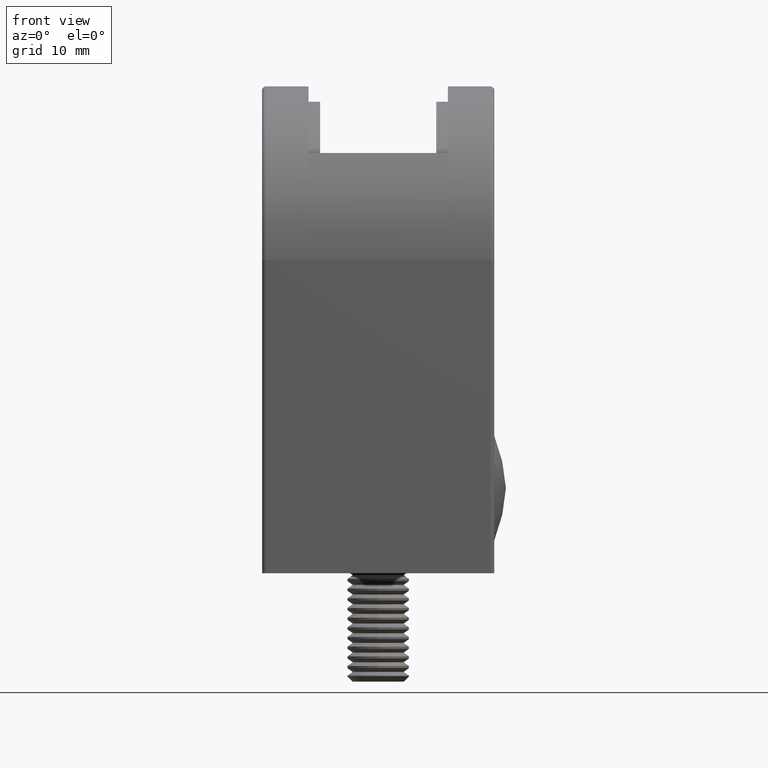
[diagram: clean part render]
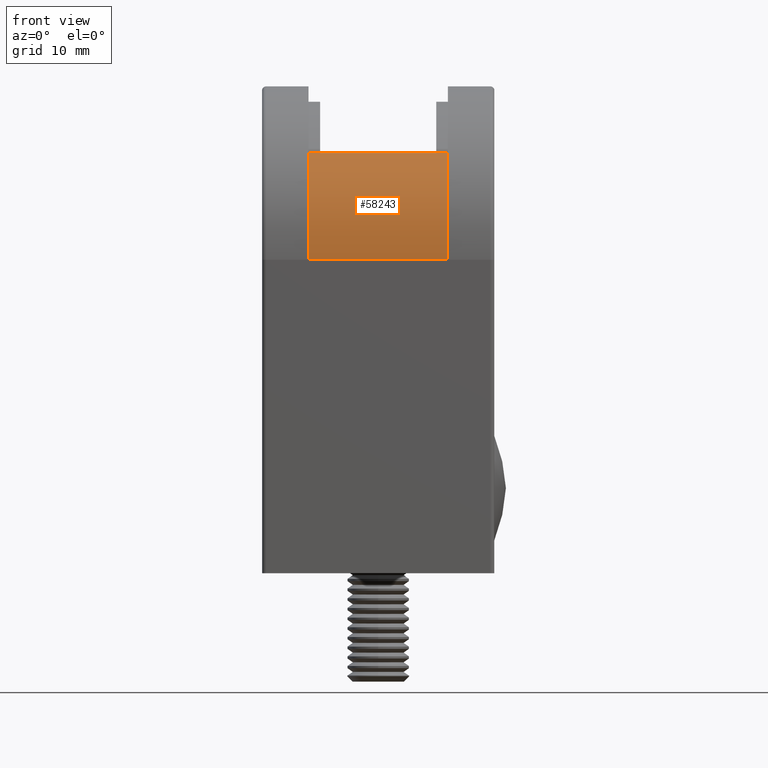
[diagram: same view with one face highlighted and labeled with its STEP entity id]
A machine part, front view. The second image highlights one B-rep face of the part: STEP entity #58243.
In plain terms, the highlighted cylindrical surface (partial cylindrical patch) has radius 22.5 mm, axis along (-1, -0, -0).
Its self-contained STEP definition (entity closure, byte-faithful):
#904 = EDGE_CURVE ( 'NONE', #84746, #38594, #84269, .T. ) ;
#1394 = CARTESIAN_POINT ( 'NONE',  ( 9.000000000000000000, 22.49999999999999289, 22.50000000000001066 ) ) ;
#5052 = LINE ( 'NONE', #44237, #28380 ) ;
#5473 = EDGE_CURVE ( 'NONE', #11238, #87777, #31754, .T. ) ;
#8587 = DIRECTION ( 'NONE',  ( 0.000000000000000000, 0.000000000000000000, -1.000000000000000000 ) ) ;
#9796 = CARTESIAN_POINT ( 'NONE',  ( 9.000000000000000000, 4.728956136456109682, 36.29999999999999716 ) ) ;
#11238 = VERTEX_POINT ( 'NONE', #32287 ) ;
#19348 = AXIS2_PLACEMENT_3D ( 'NONE', #26334, #75269, #38927 ) ;
#19973 = DIRECTION ( 'NONE',  ( 1.000000000000000000, -0.000000000000000000, 0.000000000000000000 ) ) ;
#23760 = CARTESIAN_POINT ( 'NONE',  ( -9.000000000000000000, -1.387778780781445676E-14, 22.50000000000001066 ) ) ;
#26334 = CARTESIAN_POINT ( 'NONE',  ( 9.000000000000000000, 22.49999999999999289, 22.50000000000001066 ) ) ;
#27414 = CARTESIAN_POINT ( 'NONE',  ( -9.000000000000000000, 22.49999999999999289, 22.50000000000001066 ) ) ;
#28045 = EDGE_LOOP ( 'NONE', ( #50619, #63724, #64690, #46986 ) ) ;
#28380 = VECTOR ( 'NONE', #44509, 1000.000000000000000 ) ;
#30973 = EDGE_CURVE ( 'NONE', #38594, #87777, #5052, .T. ) ;
#31754 = CIRCLE ( 'NONE', #55758, 22.50000000000000711 ) ;
#31988 = AXIS2_PLACEMENT_3D ( 'NONE', #1394, #43847, #8587 ) ;
#32287 = CARTESIAN_POINT ( 'NONE',  ( -9.000000000000000000, 4.728956136456109682, 36.29999999999999716 ) ) ;
#34685 = CYLINDRICAL_SURFACE ( 'NONE', #19348, 22.50000000000000355 ) ;
#38594 = VERTEX_POINT ( 'NONE', #85959 ) ;
#38927 = DIRECTION ( 'NONE',  ( 0.000000000000000000, 0.000000000000000000, 1.000000000000000000 ) ) ;
#41590 = DIRECTION ( 'NONE',  ( 0.000000000000000000, 0.000000000000000000, -1.000000000000000000 ) ) ;
#43847 = DIRECTION ( 'NONE',  ( 1.000000000000000000, -0.000000000000000000, 0.000000000000000000 ) ) ;
#44237 = CARTESIAN_POINT ( 'NONE',  ( 9.000000000000000000, -1.387778780781445676E-14, 22.50000000000001066 ) ) ;
#44509 = DIRECTION ( 'NONE',  ( -1.000000000000000000, -0.000000000000000000, -0.000000000000000000 ) ) ;
#44682 = CARTESIAN_POINT ( 'NONE',  ( 9.000000000000000000, 4.728956136456109682, 36.29999999999999716 ) ) ;
#46986 = ORIENTED_EDGE ( 'NONE', *, *, #89861, .T. ) ;
#50619 = ORIENTED_EDGE ( 'NONE', *, *, #5473, .T. ) ;
#55758 = AXIS2_PLACEMENT_3D ( 'NONE', #27414, #19973, #41590 ) ;
#57924 = FACE_OUTER_BOUND ( 'NONE', #28045, .T. ) ;
#58243 = ADVANCED_FACE ( 'NONE', ( #57924 ), #34685, .T. ) ;
#63724 = ORIENTED_EDGE ( 'NONE', *, *, #30973, .F. ) ;
#64690 = ORIENTED_EDGE ( 'NONE', *, *, #904, .F. ) ;
#65448 = VECTOR ( 'NONE', #87183, 1000.000000000000000 ) ;
#75269 = DIRECTION ( 'NONE',  ( -1.000000000000000000, -0.000000000000000000, -0.000000000000000000 ) ) ;
#84186 = LINE ( 'NONE', #44682, #65448 ) ;
#84269 = CIRCLE ( 'NONE', #31988, 22.50000000000000711 ) ;
#84746 = VERTEX_POINT ( 'NONE', #9796 ) ;
#85959 = CARTESIAN_POINT ( 'NONE',  ( 9.000000000000000000, -1.387778780781445676E-14, 22.50000000000001066 ) ) ;
#87183 = DIRECTION ( 'NONE',  ( -1.000000000000000000, -0.000000000000000000, -0.000000000000000000 ) ) ;
#87777 = VERTEX_POINT ( 'NONE', #23760 ) ;
#89861 = EDGE_CURVE ( 'NONE', #84746, #11238, #84186, .T. ) ;